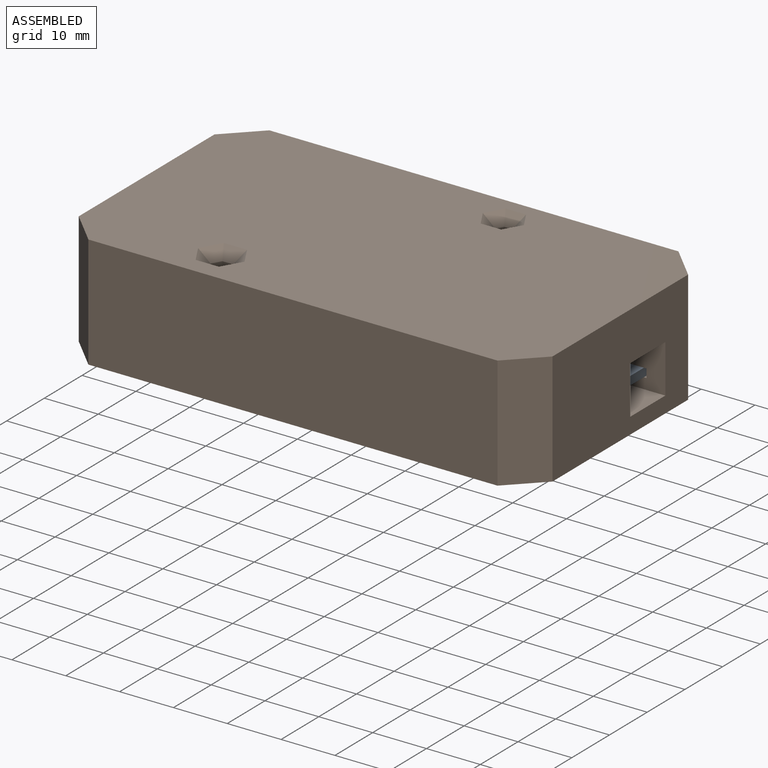
[diagram: assembled view]
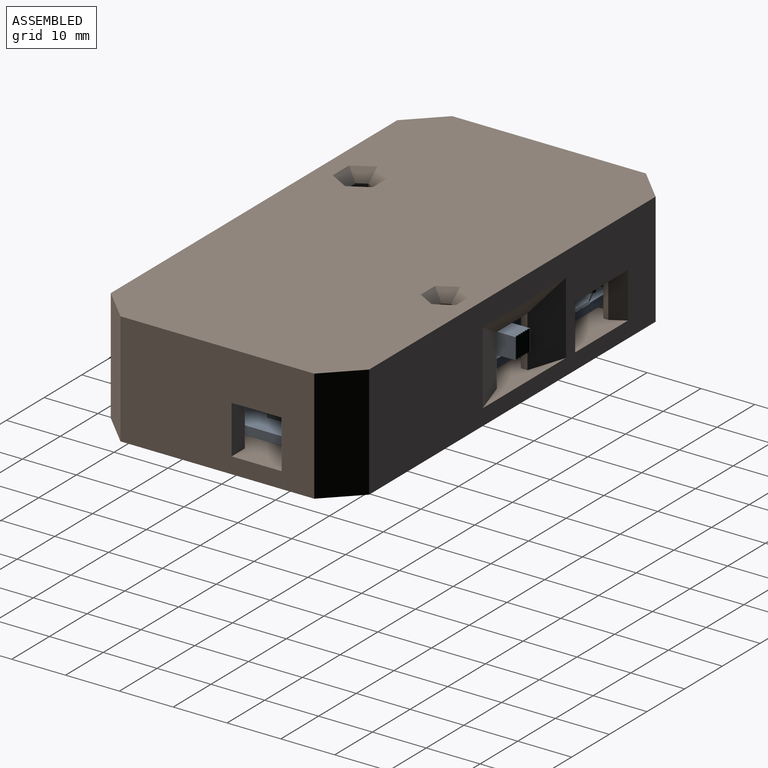
[diagram: assembled view, second angle]
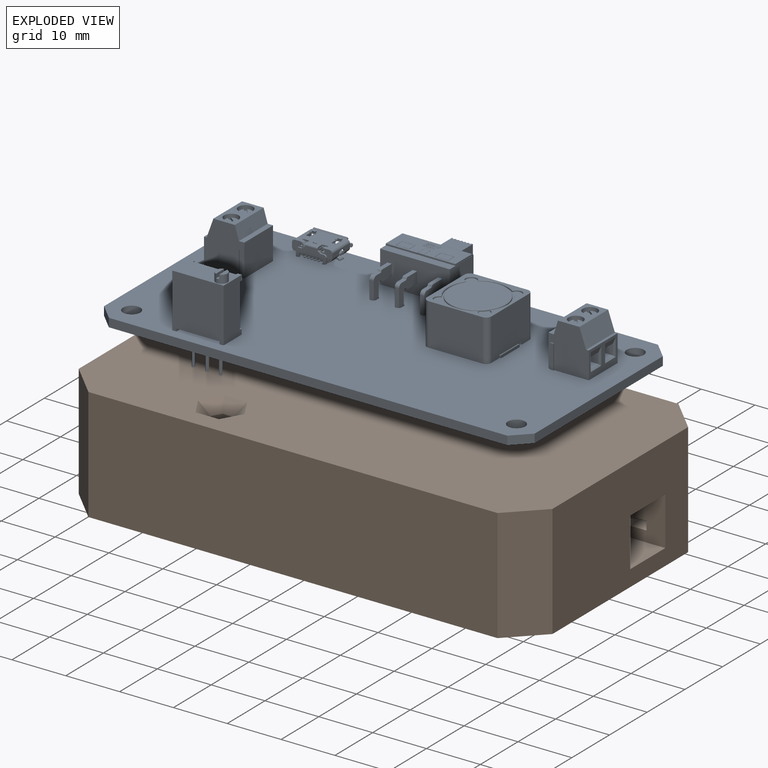
[diagram: exploded view]
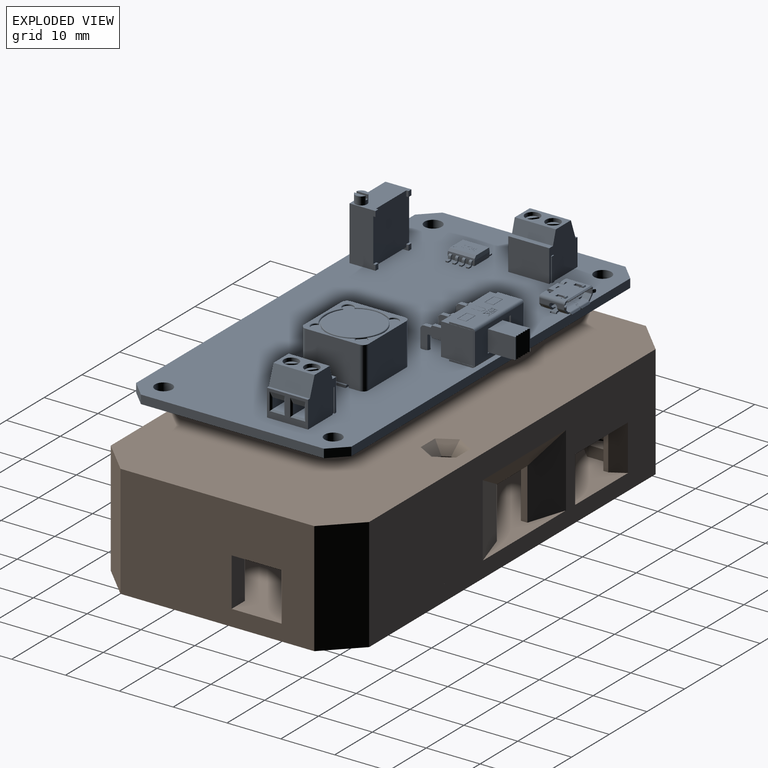
[diagram: exploded view, second angle]
FCSTD DOCUMENT  (FreeCAD 0.19R24291 (Git))
Label: Draft_Enclosure
License: All rights reserved
LicenseURL: http://en.wikipedia.org/wiki/All_rights_reserved
objects: Part::Feature×30, Sketcher::SketchObject×21, PartDesign::Mirrored×19, PartDesign::Pocket×13, PartDesign::MultiTransform×9, PartDesign::Pad×7, App::Part×6, PartDesign::Chamfer×6, PartDesign::Body×2, PartDesign::CoordinateSystem×1, App::Link×1, Part::Compound×1, App::MeasureDistance×1
note: 135 computed .brp shape members not serialized (recipe doc carries the construction recipe); baked Part::Feature solids carry a one-line shape summary decoded from their .brp

FEATURE [PartDesign::CoordinateSystem] Local_CS_88a2
  AttacherType = Attacher::AttachEngine3D
FEATURE [Part::Feature] Pcb_88a2
  Placement = pos=(-40,20,0) rot=(0,0,1;0rad)
  shape: bbox 80 x 40 x 1.6 mm, 53 faces (baked)
FEATURE [Sketcher::SketchObject] PCB_Sketch_88a2
  FullyConstrained = false
  sketch-geometry (8):
    g0: LineSegment StartX=-37 StartY=-20 StartZ=0 EndX=-40 EndY=-17 EndZ=0
    g1: LineSegment StartX=40 StartY=-17 StartZ=0 EndX=37 EndY=-20 EndZ=0
    g2: LineSegment StartX=37 StartY=20 StartZ=0 EndX=40 EndY=17 EndZ=0
    g3: LineSegment StartX=-40 StartY=17 StartZ=0 EndX=-37 EndY=20 EndZ=0
    g4: LineSegment StartX=40 StartY=-17 StartZ=0 EndX=40 EndY=17 EndZ=0
    g5: LineSegment StartX=-37 StartY=-20 StartZ=0 EndX=37 EndY=-20 EndZ=0
    g6: LineSegment StartX=37 StartY=20 StartZ=0 EndX=-37 EndY=20 EndZ=0
    g7: LineSegment StartX=-40 StartY=17 StartZ=0 EndX=-40 EndY=-17 EndZ=0
FEATURE [App::Part] Board_Geoms_88a2
  Group = -> [Local_CS_88a2,Pcb_88a2,PCB_Sketch_88a2]
  Origin = -> Origin
FEATURE [Part::Feature] Shape  label="U2_User Library-SOIC8_JEDEC_MS-012AA_60C0EC17"
  Placement = pos=(-28.75,-4.25,0) rot=(0.57735,0.57735,0.57735;2.0944rad)
  shape: bbox 6.199 x 5 x 1.753 mm, 162 faces (baked)
FEATURE [Part::Feature] Part__Feature  label="SOLID"
  shape: bbox 12.95 x 4.8 x 6.6 mm, 476 faces (baked)
FEATURE [Part::Feature] Part__Feature001  label="SOLID001"
  shape: bbox 12.95 x 16.1 x 8.83 mm, 78 faces (baked)
FEATURE [Part::Feature] Part__Feature002  label="SOLID002"
  shape: bbox 2.418 x 1.567 x 0.3 mm, 6 faces (baked)
FEATURE [Part::Feature] Part__Feature003  label="SOLID003"
  shape: bbox 2.418 x 1.567 x 0.3 mm, 6 faces (baked)
FEATURE [Part::Feature] Part__Feature004  label="SOLID004"
  shape: bbox 1.14 x 2.04 x 0.3 mm, 6 faces (baked)
FEATURE [Part::Feature] Part__Feature005  label="SOLID005"
  shape: bbox 2.418 x 1.567 x 0.3 mm, 6 faces (baked)
FEATURE [Part::Feature] Part__Feature006  label="SOLID006"
  shape: bbox 2.418 x 1.567 x 0.3 mm, 6 faces (baked)
FEATURE [Part::Feature] Part__Feature007  label="SOLID007"
  shape: bbox 1.14 x 2.04 x 0.3 mm, 6 faces (baked)
FEATURE [App::Part] ss_12d06l5_1  label="SW1_ss-12d06l5_1_60C0EBDE"
  Group = -> [Part__Feature,Part__Feature001,Part__Feature002,Part__Feature003,Part__Feature004,Part__Feature005,Part__Feature006,Part__Feature007]
  Origin = -> Origin008
  Placement = pos=(-3.25,19.3,3.3) rot=(0,1,0;3.14159rad)
FEATURE [Part::Feature] Shape001  label="RV1_User Library-bourns 3296 pot_60C0EB31"
  Placement = pos=(-21.75,-13.75,0) rot=(1,0,0;1.5708rad)
  shape: bbox 9.53 x 4.831 x 17.95 mm, 194 faces (baked)
FEATURE [Part::Feature] Shape002  label="L1_User Library-DE1207_60D26DF9"
  Placement = pos=(14.25,4.75,0) rot=(0,0,-1;1.5708rad)
  shape: bbox 21 x 12.07 x 8 mm, 93 faces (baked)
FEATURE [Part::Feature] Shape003  label="J7_User Library-ARK2_3v81_60C0E812"
  Placement = pos=(32,7.25,0) rot=(0,0,-1;1.5708rad)
  shape: bbox 7.501 x 7.811 x 12 mm, 76 faces (baked)
FEATURE [App::Link] J7_User_Library_ARK2_3v81_60C0E812_ln_  label="J6_User Library-ARK2_3v81_60C0E74A"
  LinkPlacement = pos=(-32,7.25,0) rot=(0,0,1;1.5708rad)
  LinkedObject = -> Shape003
  Placement = pos=(-32,7.25,0) rot=(0,0,1;1.5708rad)
FEATURE [Part::Feature] Shape004  label="J5_User Library-MicroUSB-B_Molex_105017-0001_60C0E682"
  Placement = pos=(-23.75,17.35,1.2) rot=(0,0.707107,0.707107;3.14159rad)
  shape: bbox 8.2 x 5.43 x 3.3 mm, 436 faces (baked)
FEATURE [App::Part] Top_88a2
  Group = -> [Shape,ss_12d06l5_1,Shape001,Shape002,Shape003,J7_User_Library_ARK2_3v81_60C0E812_ln_,Shape004]
  Origin = -> Origin003
FEATURE [App::Part] Step_Models_88a2
  Group = -> [Top_88a2]
  Origin = -> Origin002
FEATURE [App::Part] Board_88a2  label="BatteryBoost"
  Group = -> [Board_Geoms_88a2,Step_Models_88a2]
  Origin = -> Origin001
FEATURE [Part::Feature] Pcb_88a2_cp
  Placement = pos=(-40,20,0) rot=(0,0,1;0rad)
  shape: bbox 80 x 40 x 1.6 mm, 53 faces (baked)
FEATURE [Part::Feature] Shape_cp  label="U2_User Library-SOIC8_JEDEC_MS-012AA_60C0EC17_cp"
  Placement = pos=(-28.75,-4.25,0) rot=(0.57735,0.57735,0.57735;2.0944rad)
  shape: bbox 6.199 x 5 x 1.753 mm, 162 faces (baked)
FEATURE [Part::Feature] Part__Feature_cp  label="SOLID_cp"
  Placement = pos=(-3.25,19.3,3.3) rot=(0,1,0;3.14159rad)
  shape: bbox 12.95 x 4.8 x 6.6 mm, 476 faces (baked)
FEATURE [Part::Feature] Part__Feature001_cp  label="SOLID001_cp"
  Placement = pos=(-3.25,19.3,3.3) rot=(0,1,0;3.14159rad)
  shape: bbox 12.95 x 16.1 x 8.83 mm, 78 faces (baked)
FEATURE [Part::Feature] Part__Feature002_cp  label="SOLID002_cp"
  Placement = pos=(-3.25,19.3,3.3) rot=(0,1,0;3.14159rad)
  shape: bbox 2.418 x 1.567 x 0.3 mm, 6 faces (baked)
FEATURE [Part::Feature] Part__Feature003_cp  label="SOLID003_cp"
  Placement = pos=(-3.25,19.3,3.3) rot=(0,1,0;3.14159rad)
  shape: bbox 2.418 x 1.567 x 0.3 mm, 6 faces (baked)
FEATURE [Part::Feature] Part__Feature004_cp  label="SOLID004_cp"
  Placement = pos=(-3.25,19.3,3.3) rot=(0,1,0;3.14159rad)
  shape: bbox 1.14 x 2.04 x 0.3 mm, 6 faces (baked)
FEATURE [Part::Feature] Part__Feature005_cp  label="SOLID005_cp"
  Placement = pos=(-3.25,19.3,3.3) rot=(0,1,0;3.14159rad)
  shape: bbox 2.418 x 1.567 x 0.3 mm, 6 faces (baked)
FEATURE [Part::Feature] Part__Feature006_cp  label="SOLID006_cp"
  Placement = pos=(-3.25,19.3,3.3) rot=(0,1,0;3.14159rad)
  shape: bbox 2.418 x 1.567 x 0.3 mm, 6 faces (baked)
FEATURE [Part::Feature] Part__Feature007_cp  label="SOLID007_cp"
  Placement = pos=(-3.25,19.3,3.3) rot=(0,1,0;3.14159rad)
  shape: bbox 1.14 x 2.04 x 0.3 mm, 6 faces (baked)
FEATURE [Part::Feature] Shape001_cp  label="RV1_User Library-bourns 3296 pot_60C0EB31_cp"
  Placement = pos=(-21.75,-13.75,0) rot=(1,0,0;1.5708rad)
  shape: bbox 9.53 x 4.831 x 17.95 mm, 194 faces (baked)
FEATURE [Part::Feature] Shape002_cp  label="L1_User Library-DE1207_60D26DF9_cp"
  Placement = pos=(14.25,4.75,0) rot=(0,0,-1;1.5708rad)
  shape: bbox 21 x 12.07 x 8 mm, 93 faces (baked)
FEATURE [Part::Feature] Shape003_cp  label="J7_User Library-ARK2_3v81_60C0E812_cp"
  Placement = pos=(32,7.25,0) rot=(0,0,-1;1.5708rad)
  shape: bbox 7.501 x 7.811 x 12 mm, 76 faces (baked)
FEATURE [Part::Feature] J7_User_Library_ARK2_3v81_60C0E812_ln__cp  label="J6_User Library-ARK2_3v81_60C0E74A_cp"
  Placement = pos=(-32,7.25,0) rot=(0,0,1;1.5708rad)
  shape: bbox 7.501 x 7.811 x 12 mm, 76 faces (baked)
FEATURE [Part::Feature] Shape004_cp  label="J5_User Library-MicroUSB-B_Molex_105017-0001_60C0E682_cp"
  Placement = pos=(-23.75,17.35,1.2) rot=(0,0.707107,0.707107;3.14159rad)
  shape: bbox 8.2 x 5.43 x 3.3 mm, 436 faces (baked)
FEATURE [Part::Compound] BatteryBoost_cp
  Links = -> [Pcb_88a2_cp,Shape_cp,Part__Feature_cp,Part__Feature001_cp,Part__Feature002_cp,Part__Feature003_cp,Part__Feature004_cp,Part__Feature005_cp,Part__Feature006_cp,Part__Feature007_cp,Shape001_cp,Shape002_cp,Shape003_cp,J7_User_Library_ARK2_3v81_60C0E812_ln__cp,Shape004_cp]
FEATURE [Part::Feature] BatteryBoost_cp_cp  label="BatteryBoost_sp"
  Placement = pos=(0,0,1e-16) rot=(0,0,1;0rad)
  shape: bbox 80 x 44.3 x 17.95 mm, 1680 faces, 15 solids (baked)
FEATURE [Sketcher::SketchObject] Sketch
  FullyConstrained = true
  MapMode = 5
  Support = -> [XY_Plane010]
  sketch-geometry (4):
    g0: LineSegment StartX=-44 StartY=-24 StartZ=0 EndX=44 EndY=-24 EndZ=0
    g1: LineSegment StartX=44 StartY=-24 StartZ=0 EndX=44 EndY=24 EndZ=0
    g2: LineSegment StartX=44 StartY=24 StartZ=0 EndX=-44 EndY=24 EndZ=0
    g3: LineSegment StartX=-44 StartY=24 StartZ=0 EndX=-44 EndY=-24 EndZ=0
  constraints (10):
    c: Coincident(g0,g1)
    c: Coincident(g1,g2)
    c: Coincident(g2,g3)
    c: Coincident(g3,g0)
    c: Horizontal(g0)
    c: Vertical(g3)
    c: Symmetric(g2,g1,g-2)
    c: Symmetric(g1,g0,g-1)
    c: DistanceX(g0,g0) = 88
    c: DistanceY(g1,g1) = 48
FEATURE [PartDesign::Pad] Pad
  Direction = (1,1,1)
  Length = 3
  Length2 = 100
  Profile = -> Sketch
  Type = 0
FEATURE [Sketcher::SketchObject] Sketch001
  ExternalGeometry = -> [Pad]
  FullyConstrained = true
  MapMode = 5
  Placement = pos=(0,0,3) rot=(0,0,1;0rad)
  Support = -> [Pad]
  sketch-geometry (8):
    g0: LineSegment StartX=-44 StartY=24 StartZ=0 EndX=44 EndY=24 EndZ=0
    g1: LineSegment StartX=44 StartY=24 StartZ=0 EndX=44 EndY=-24 EndZ=0
    g2: LineSegment StartX=44 StartY=-24 StartZ=0 EndX=-44 EndY=-24 EndZ=0
    g3: LineSegment StartX=-44 StartY=-24 StartZ=0 EndX=-44 EndY=24 EndZ=0
    g4: LineSegment StartX=-40.5 StartY=20.5 StartZ=0 EndX=40.5 EndY=20.5 EndZ=0
    g5: LineSegment StartX=40.5 StartY=20.5 StartZ=0 EndX=40.5 EndY=-20.5 EndZ=0
    g6: LineSegment StartX=40.5 StartY=-20.5 StartZ=0 EndX=-40.5 EndY=-20.5 EndZ=0
    g7: LineSegment StartX=-40.5 StartY=-20.5 StartZ=0 EndX=-40.5 EndY=20.5 EndZ=0
  constraints (21):
    c: Coincident(g0,g1)
    c: Coincident(g1,g2)
    c: Coincident(g2,g3)
    c: Coincident(g3,g0)
    c: Horizontal(g0)
    c: Horizontal(g2)
    c: Vertical(g1)
    c: Vertical(g3)
    c: Equal(g-3,g0)
    c: Coincident(g-3,g0)
    c: Equal(g1,g-4)
    c: Coincident(g4,g5)
    c: Coincident(g5,g6)
    c: Coincident(g6,g7)
    c: Coincident(g7,g4)
    c: Horizontal(g6)
    c: Vertical(g5)
    c: Symmetric(g4,g6,g-1)
    c: Symmetric(g4,g4,g-2)
    c: DistanceX(g4,g4) = 81
    c: DistanceY(g7,g7) = 41
FEATURE [PartDesign::Pad] Pad001
  BaseFeature = -> Pad
  Direction = (1,1,1)
  Length = 15
  Length2 = 100
  Profile = -> Sketch001
  Type = 0
FEATURE [Sketcher::SketchObject] Sketch002
  ExternalGeometry = -> [Pad001]
  FullyConstrained = false
  MapMode = 5
  Placement = pos=(0,0,3) rot=(0,0,1;0rad)
  Support = -> [Pad001]
  sketch-geometry (10):
    g0: LineSegment StartX=-31.9645 StartY=15.5 StartZ=0 EndX=-31.9645 EndY=20.5 EndZ=0
    g1: LineSegment StartX=-40.5 StartY=11.9645 StartZ=0 EndX=-35.5 EndY=11.9645 EndZ=0
    g2: LineSegment StartX=-35.5 StartY=11.9645 StartZ=0 EndX=-31.9645 EndY=15.5 EndZ=0
    g3: Circle CenterX=-38 CenterY=18 CenterZ=0 NormalX=0 NormalY=0 NormalZ=1 AngleXU=0 Radius=6.53281
    g4: LineSegment StartX=-40.5 StartY=11.9645 StartZ=0 EndX=-40.5 EndY=20.5 EndZ=0
    g5: LineSegment StartX=-40.5 StartY=20.5 StartZ=0 EndX=-31.9645 EndY=20.5 EndZ=0
    g6: Circle CenterX=-35.75 CenterY=15.75 CenterZ=0 NormalX=0 NormalY=0 NormalZ=1 AngleXU=0 Radius=2
    g7: LineSegment StartX=-39.9824 StartY=20.0201 StartZ=0 EndX=-37.0687 EndY=17.2575 EndZ=0
    g8: LineSegment StartX=-35.904 StartY=12.738 StartZ=0 EndX=-36.7469 EndY=15.9243 EndZ=0
    g9: LineSegment StartX=-32.6433 StartY=15.7056 StartZ=0 EndX=-36.0445 EndY=16.1423 EndZ=0
  constraints (20):
    c: Coincident(g1,g2)
    c: Coincident(g2,g0)
    c: Equal(g0,g1)
    c: Equal(g0,g2)
    c: PointOnObject(g0,g3)
    c: PointOnObject(g1,g3)
    c: PointOnObject(g1,g3)
    c: PointOnObject(g2,g3)
    c: PointOnObject(g0,g-3)
    c: PointOnObject(g1,g-4)
    c: Vertical(g0)
    c: Horizontal(g1)
    c: DistanceY(g0,g0) = 5
    c: Coincident(g4,g5)
    c: Coincident(g5,g0)
    c: Coincident(g4,g1)
    c: Coincident(g-4,g4)
    c: Diameter(g6) = 4
    c: DistanceX(g6,g-1) = 35.75
    c: DistanceY(g-1,g6) = 15.75
FEATURE [PartDesign::Pad] Pad002
  BaseFeature = -> Pad001
  Direction = (1,1,1)
  Length = 11.4
  Length2 = 100
  Profile = -> Sketch002
  Type = 0
FEATURE [PartDesign::Mirrored] Mirrored
  MirrorPlane = -> Sketch002 [V_Axis]
FEATURE [PartDesign::Mirrored] Mirrored001
  MirrorPlane = -> Sketch002 [H_Axis]
FEATURE [PartDesign::MultiTransform] MultiTransform
  BaseFeature = -> Pad002
  Originals = -> [Pad002]
  Transformations = -> [Mirrored,Mirrored001]
FEATURE [Sketcher::SketchObject] Sketch003
  ExternalGeometry = -> [MultiTransform]
  FullyConstrained = false
  MapMode = 5
  Placement = pos=(-44,0,0) rot=(0.57735,-0.57735,-0.57735;2.0944rad)
  Support = -> [MultiTransform]
  sketch-geometry (4):
    g0: LineSegment StartX=2.65431 StartY=18 StartZ=0 EndX=11.9479 EndY=18 EndZ=0
    g1: LineSegment StartX=11.9479 StartY=18 StartZ=0 EndX=11.9479 EndY=9.0159 EndZ=0
    g2: LineSegment StartX=11.9479 StartY=9.0159 StartZ=0 EndX=2.65431 EndY=9.0159 EndZ=0
    g3: LineSegment StartX=2.65431 StartY=9.0159 StartZ=0 EndX=2.65431 EndY=18 EndZ=0
  constraints (9):
    c: Coincident(g0,g1)
    c: Coincident(g1,g2)
    c: Coincident(g2,g3)
    c: Coincident(g3,g0)
    c: Horizontal(g0)
    c: Horizontal(g2)
    c: Vertical(g1)
    c: Vertical(g3)
    c: PointOnObject(g0,g-3)
FEATURE [PartDesign::Pocket] Pocket
  BaseFeature = -> MultiTransform
  Length = 5
  Length2 = 100
  Profile = -> Sketch003
  Type = 0
FEATURE [PartDesign::Mirrored] Mirrored002
  BaseFeature = -> Pocket
  MirrorPlane = -> YZ_Plane010
  Originals = -> [Pocket]
FEATURE [Sketcher::SketchObject] Sketch004
  ExternalGeometry = -> [Mirrored002]
  FullyConstrained = false
  MapMode = 5
  Placement = pos=(0,-24,0) rot=(1,0,0;1.5708rad)
  Support = -> [Mirrored002]
  sketch-geometry (4):
    g0: LineSegment StartX=-7.23893 StartY=18 StartZ=0 EndX=0.861068 EndY=18 EndZ=0
    g1: LineSegment StartX=0.861068 StartY=18 StartZ=0 EndX=0.861068 EndY=8.5 EndZ=0
    g2: LineSegment StartX=0.861068 StartY=8.5 StartZ=0 EndX=-7.23893 EndY=8.5 EndZ=0
    g3: LineSegment StartX=-7.23893 StartY=8.5 StartZ=0 EndX=-7.23893 EndY=18 EndZ=0
  constraints (11):
    c: Coincident(g0,g1)
    c: Coincident(g1,g2)
    c: Coincident(g2,g3)
    c: Coincident(g3,g0)
    c: Horizontal(g0)
    c: Horizontal(g2)
    c: Vertical(g1)
    c: Vertical(g3)
    c: PointOnObject(g0,g-3)
    c: DistanceX(g0,g0) = 8.1
    c: DistanceY(g1,g1) = 9.5
FEATURE [PartDesign::Pocket] Pocket001
  BaseFeature = -> Mirrored002
  Length = 5
  Length2 = 100
  Profile = -> Sketch004
  Type = 0
FEATURE [PartDesign::Chamfer] Chamfer
  Angle = 18
  Base = -> Pocket001 [Edge16,Edge14]
  BaseFeature = -> Pocket001
  ChamferType = 2
  FlipDirection = false
  Size = 7
  Size2 = 1
  SupportTransform = false
FEATURE [PartDesign::Chamfer] Chamfer001
  Angle = 30
  Base = -> Chamfer [Edge6,Edge4,Edge8]
  BaseFeature = -> Chamfer
  ChamferType = 2
  FlipDirection = false
  Size = 4
  Size2 = 1
  SupportTransform = false
FEATURE [Sketcher::SketchObject] Sketch005
  ExternalGeometry = -> [Chamfer001]
  FullyConstrained = false
  MapMode = 5
  Placement = pos=(0,-24,0) rot=(1,0,0;1.5708rad)
  Support = -> [Chamfer001]
  sketch-geometry (4):
    g0: LineSegment StartX=-29.1463 StartY=18 StartZ=0 EndX=-18.1463 EndY=18 EndZ=0
    g1: LineSegment StartX=-18.1463 StartY=18 StartZ=0 EndX=-18.1463 EndY=11 EndZ=0
    g2: LineSegment StartX=-18.1463 StartY=11 StartZ=0 EndX=-29.1463 EndY=11 EndZ=0
    g3: LineSegment StartX=-29.1463 StartY=11 StartZ=0 EndX=-29.1463 EndY=18 EndZ=0
  constraints (11):
    c: Coincident(g0,g1)
    c: Coincident(g1,g2)
    c: Coincident(g2,g3)
    c: Coincident(g3,g0)
    c: Horizontal(g0)
    c: Horizontal(g2)
    c: Vertical(g1)
    c: Vertical(g3)
    c: PointOnObject(g0,g-3)
    c: DistanceX(g2,g2) = 11
    c: DistanceY(g1,g1) = 7
FEATURE [PartDesign::Pocket] Pocket002
  BaseFeature = -> Chamfer001
  Length = 5
  Length2 = 100
  Profile = -> Sketch005
  Type = 0
FEATURE [PartDesign::Chamfer] Chamfer002
  Angle = 60
  Base = -> Pocket002 [Edge11,Edge12,Edge10]
  BaseFeature = -> Pocket002
  ChamferType = 2
  FlipDirection = false
  Size = 1.5
  Size2 = 1
  SupportTransform = false
FEATURE [Sketcher::SketchObject] Sketch006
  ExternalGeometry = -> [Chamfer002]
  FullyConstrained = true
  MapMode = 5
  Placement = pos=(0,0,14.4) rot=(0,0,1;0rad)
  Support = -> [Chamfer002]
  sketch-geometry (3):
    g0: LineSegment StartX=-40.5 StartY=20.5 StartZ=0 EndX=-40.5 EndY=17 EndZ=0
    g1: LineSegment StartX=-40.5 StartY=17 StartZ=0 EndX=-37 EndY=20.5 EndZ=0
    g2: LineSegment StartX=-37 StartY=20.5 StartZ=0 EndX=-40.5 EndY=20.5 EndZ=0
  constraints (8):
    c: Vertical(g0)
    c: Coincident(g0,g1)
    c: Coincident(g1,g2)
    c: Coincident(g0,g2)
    c: Coincident(g0,g-4)
    c: PointOnObject(g1,g-3)
    c: Angle(g2,g1) = 0.785398
    c: DistanceX(g2,g2) = 3.5
FEATURE [PartDesign::Pad] Pad003
  BaseFeature = -> Chamfer002
  Direction = (1,1,1)
  Length = 1.6
  Length2 = 100
  Profile = -> Sketch006
  Type = 0
FEATURE [PartDesign::Mirrored] Mirrored003
  MirrorPlane = -> Sketch006 [V_Axis]
FEATURE [PartDesign::Mirrored] Mirrored004
  MirrorPlane = -> Sketch006 [H_Axis]
FEATURE [PartDesign::MultiTransform] MultiTransform001
  BaseFeature = -> Pad003
  Originals = -> [Pad003]
  Transformations = -> [Mirrored003,Mirrored004]
FEATURE [Sketcher::SketchObject] Sketch007
  FullyConstrained = false
  MapMode = 5
  Placement = pos=(0,0,0) rot=(1,0,0;3.14159rad)
  Support = -> [MultiTransform001]
  sketch-geometry (8):
    g0: LineSegment StartX=-16.2674 StartY=-16.9218 StartZ=0 EndX=-17.2674 EndY=-15.1897 EndZ=0
    g1: LineSegment StartX=-17.2674 StartY=-15.1897 StartZ=0 EndX=-19.2674 EndY=-15.1897 EndZ=0
    g2: LineSegment StartX=-19.2674 StartY=-15.1897 StartZ=0 EndX=-20.2674 EndY=-16.9218 EndZ=0
    g3: LineSegment StartX=-20.2674 StartY=-16.9218 StartZ=0 EndX=-19.2674 EndY=-18.6538 EndZ=0
    g4: LineSegment StartX=-19.2674 StartY=-18.6538 StartZ=0 EndX=-17.2674 EndY=-18.6538 EndZ=0
    g5: LineSegment StartX=-17.2674 StartY=-18.6538 StartZ=0 EndX=-16.2674 EndY=-16.9218 EndZ=0
    g6: Circle CenterX=-18.2674 CenterY=-16.9218 CenterZ=0 NormalX=0 NormalY=0 NormalZ=1 AngleXU=0 Radius=2
    g7: LineSegment StartX=-20.2674 StartY=-16.9218 StartZ=0 EndX=-16.2674 EndY=-16.9218 EndZ=0
  constraints (17):
    c: Coincident(g0,g1)
    c: Coincident(g1,g2)
    c: Coincident(g2,g3)
    c: Coincident(g3,g4)
    c: Coincident(g4,g5)
    c: Coincident(g5,g0)
    c: Equal(g0, g1-g5) x5
    c: PointOnObject(g0,g6)
    c: PointOnObject(g1,g6)
    c: PointOnObject(g2,g6)
    c: PointOnObject(g3,g6)
    c: PointOnObject(g4,g6)
    c: PointOnObject(g5,g6)
    c: Coincident(g7,g2)
    c: Coincident(g7,g0)
    c: Horizontal(g7)
    c: DistanceX(g1,g1) = 2
FEATURE [PartDesign::Pocket] Pocket003
  BaseFeature = -> MultiTransform001
  Length = 5
  Length2 = 100
  Profile = -> Sketch007
  Type = 0
FEATURE [PartDesign::Chamfer] Chamfer003
  Angle = 45
  Base = -> Pocket003 [Edge111,Edge112,Edge107,Edge108,Edge109,Edge110]
  BaseFeature = -> Pocket003
  ChamferType = 0
  FlipDirection = false
  Size = 2
  Size2 = 1
  SupportTransform = false
FEATURE [Sketcher::SketchObject] Sketch008
  FullyConstrained = true
  MapMode = 5
  Placement = pos=(0,0,0) rot=(1,0,0;3.14159rad)
  Support = -> [Chamfer003]
  sketch-geometry (8):
    g0: GeomPoint X=9.5 Y=18.25 Z=0
    g1: LineSegment StartX=11 StartY=18.25 StartZ=0 EndX=10.25 EndY=19.549 EndZ=0
    g2: LineSegment StartX=10.25 StartY=19.549 StartZ=0 EndX=8.75 EndY=19.549 EndZ=0
    g3: LineSegment StartX=8.75 StartY=19.549 StartZ=0 EndX=8 EndY=18.25 EndZ=0
    g4: LineSegment StartX=8 StartY=18.25 StartZ=0 EndX=8.75 EndY=16.951 EndZ=0
    g5: LineSegment StartX=8.75 StartY=16.951 StartZ=0 EndX=10.25 EndY=16.951 EndZ=0
    g6: LineSegment StartX=10.25 StartY=16.951 StartZ=0 EndX=11 EndY=18.25 EndZ=0
    g7: Circle CenterX=9.5 CenterY=18.25 CenterZ=0 NormalX=0 NormalY=0 NormalZ=1 AngleXU=0 Radius=1.5
  constraints (18):
    c: DistanceX(g-1,g0) = 9.5
    c: DistanceY(g-1,g0) = 18.25
    c: Coincident(g1,g2)
    c: Coincident(g2,g3)
    c: Coincident(g3,g4)
    c: Coincident(g4,g5)
    c: Coincident(g5,g6)
    c: Coincident(g6,g1)
    c: Equal(g1, g2-g6) x5
    c: PointOnObject(g1,g7)
    c: PointOnObject(g2,g7)
    c: PointOnObject(g3,g7)
    c: PointOnObject(g4,g7)
    c: PointOnObject(g5,g7)
    c: PointOnObject(g6,g7)
    c: Coincident(g7,g0)
    c: Horizontal(g1,g0)
    c: DistanceX(g2,g2) = 1.5
FEATURE [PartDesign::Pocket] Pocket004
  BaseFeature = -> Chamfer003
  Length = 5
  Length2 = 100
  Profile = -> Sketch008
  Type = 0
FEATURE [PartDesign::Chamfer] Chamfer004
  Angle = 45
  Base = -> Pocket004 [Edge9,Edge8,Edge7,Edge6,Edge5,Edge10]
  BaseFeature = -> Pocket004
  ChamferType = 0
  FlipDirection = false
  Size = 2
  Size2 = 1
  SupportTransform = false
FEATURE [Sketcher::SketchObject] Sketch009
  ExternalGeometry = -> [Chamfer004]
  FullyConstrained = true
  MapMode = 5
  Placement = pos=(-44,0,0) rot=(0.57735,-0.57735,-0.57735;2.0944rad)
  Support = -> [Chamfer004]
  sketch-geometry (4):
    g0: LineSegment StartX=2.65431 StartY=18 StartZ=0 EndX=-9.34569 EndY=18 EndZ=0
    g1: LineSegment StartX=-9.34569 StartY=18 StartZ=0 EndX=-9.34569 EndY=12 EndZ=0
    g2: LineSegment StartX=-9.34569 StartY=12 StartZ=0 EndX=2.65431 EndY=12 EndZ=0
    g3: LineSegment StartX=2.65431 StartY=12 StartZ=0 EndX=2.65431 EndY=18 EndZ=0
  constraints (11):
    c: Coincident(g0,g1)
    c: Coincident(g1,g2)
    c: Coincident(g2,g3)
    c: Coincident(g3,g0)
    c: Horizontal(g0)
    c: Horizontal(g2)
    c: Vertical(g1)
    c: Vertical(g3)
    c: Coincident(g0,g-4)
    c: DistanceX(g2,g2) = 12
    c: DistanceY(g1,g1) = 6
FEATURE [PartDesign::Pocket] Pocket005
  BaseFeature = -> Chamfer004
  Length = 5
  Length2 = 100
  Profile = -> Sketch009
  Type = 0
FEATURE [PartDesign::Chamfer] Chamfer005
  Angle = 60
  Base = -> Pocket005 [Edge77]
  BaseFeature = -> Pocket005
  ChamferType = 2
  FlipDirection = false
  Size = 2
  Size2 = 1
  SupportTransform = false
FEATURE [Sketcher::SketchObject] Sketch010
  ExternalGeometry = -> [Chamfer005]
  FullyConstrained = true
  MapMode = 5
  Placement = pos=(0,0,0) rot=(1,0,0;3.14159rad)
  Support = -> [Chamfer005]
  sketch-geometry (3):
    g0: LineSegment StartX=38 StartY=24 StartZ=0 EndX=44 EndY=24 EndZ=0
    g1: LineSegment StartX=44 StartY=24 StartZ=0 EndX=44 EndY=18 EndZ=0
    g2: LineSegment StartX=44 StartY=18 StartZ=0 EndX=38 EndY=24 EndZ=0
  constraints (8):
    c: Horizontal(g0)
    c: Coincident(g0,g1)
    c: Coincident(g1,g2)
    c: Coincident(g2,g0)
    c: PointOnObject(g1,g-4)
    c: Coincident(g0,g-4)
    c: Equal(g0,g1)
    c: DistanceX(g0,g0) = 6
FEATURE [PartDesign::Pocket] Pocket006
  BaseFeature = -> Chamfer005
  Length = 5
  Length2 = 100
  Profile = -> Sketch010
  Type = 1
FEATURE [PartDesign::Mirrored] Mirrored005
  MirrorPlane = -> Sketch010 [V_Axis]
FEATURE [PartDesign::Mirrored] Mirrored006
  MirrorPlane = -> Sketch010 [H_Axis]
FEATURE [PartDesign::MultiTransform] MultiTransform002
  BaseFeature = -> Pocket006
  Originals = -> [Pocket006]
  Transformations = -> [Mirrored005,Mirrored006]
FEATURE [Sketcher::SketchObject] Sketch011
  ExternalGeometry = -> [MultiTransform002]
  FullyConstrained = true
  MapMode = 5
  Placement = pos=(0,0,16) rot=(0,0,1;0rad)
  Support = -> [MultiTransform002]
  sketch-geometry (3):
    g0: LineSegment StartX=-40.5 StartY=-20.5 StartZ=0 EndX=-40.5 EndY=-17 EndZ=0
    g1: LineSegment StartX=-40.5 StartY=-17 StartZ=0 EndX=-37 EndY=-20.5 EndZ=0
    g2: LineSegment StartX=-37 StartY=-20.5 StartZ=0 EndX=-40.5 EndY=-20.5 EndZ=0
  constraints (7):
    c: Coincident(g0,g1)
    c: Coincident(g1,g2)
    c: Coincident(g2,g0)
    c: Equal(g0,g2)
    c: Horizontal(g2)
    c: Coincident(g0,g-4)
    c: Coincident(g0,g-3)
FEATURE [PartDesign::Pad] Pad004
  BaseFeature = -> MultiTransform002
  Direction = (1,1,1)
  Length = 2
  Length2 = 100
  Profile = -> Sketch011
  Type = 0
FEATURE [PartDesign::Mirrored] Mirrored007
  MirrorPlane = -> Sketch011 [V_Axis]
FEATURE [PartDesign::Mirrored] Mirrored008
  MirrorPlane = -> Sketch011 [H_Axis]
FEATURE [PartDesign::MultiTransform] MultiTransform003
  BaseFeature = -> Pad004
  Originals = -> [Pad004]
  Transformations = -> [Mirrored007,Mirrored008]
FEATURE [PartDesign::Body] Body
  Group = -> [Sketch,Pad,Sketch001,Pad001,Sketch002,Pad002,MultiTransform,Mirrored,Mirrored001,Sketch003,Pocket,Mirrored002,Sketch004,Pocket001,Chamfer,Chamfer001,Sketch005,Pocket002,Chamfer002,Sketch006,Pad003,MultiTransform001,Mirrored003,Mirrored004,Sketch007,Pocket003,Chamfer003,Sketch008,Pocket004,Chamfer004,Sketch009,Pocket005,Chamfer005,Sketch010,Pocket006,MultiTransform002,Mirrored005,Mirrored006,+5 more]
  Origin = -> Origin010
  Placement = pos=(0,3e-15,19.4) rot=(1,0,0;3.14159rad)
  Tip = -> MultiTransform003
FEATURE [Sketcher::SketchObject] Sketch012
  FullyConstrained = true
  MapMode = 5
  Support = -> [XY_Plane011]
  sketch-geometry (4):
    g0: LineSegment StartX=-44 StartY=24 StartZ=0 EndX=44 EndY=24 EndZ=0
    g1: LineSegment StartX=44 StartY=24 StartZ=0 EndX=44 EndY=-24 EndZ=0
    g2: LineSegment StartX=44 StartY=-24 StartZ=0 EndX=-44 EndY=-24 EndZ=0
    g3: LineSegment StartX=-44 StartY=-24 StartZ=0 EndX=-44 EndY=24 EndZ=0
  constraints (10):
    c: Coincident(g0,g1)
    c: Coincident(g1,g2)
    c: Coincident(g2,g3)
    c: Coincident(g3,g0)
    c: Horizontal(g2)
    c: Vertical(g3)
    c: Symmetric(g0,g0,g-2)
    c: Symmetric(g0,g1,g-1)
    c: DistanceX(g0,g0) = 88
    c: DistanceY(g1,g1) = 48
FEATURE [PartDesign::Pad] Pad005
  Direction = (1,1,1)
  Length = 4
  Length2 = 100
  Profile = -> Sketch012
  Type = 0
FEATURE [Sketcher::SketchObject] Sketch013
  FullyConstrained = true
  MapMode = 5
  Placement = pos=(0,0,4) rot=(0,0,1;0rad)
  Support = -> [Pad005]
  sketch-geometry (4):
    g0: LineSegment StartX=-40.5 StartY=20.5 StartZ=0 EndX=40.5 EndY=20.5 EndZ=0
    g1: LineSegment StartX=40.5 StartY=20.5 StartZ=0 EndX=40.5 EndY=-20.5 EndZ=0
    g2: LineSegment StartX=40.5 StartY=-20.5 StartZ=0 EndX=-40.5 EndY=-20.5 EndZ=0
    g3: LineSegment StartX=-40.5 StartY=-20.5 StartZ=0 EndX=-40.5 EndY=20.5 EndZ=0
  constraints (10):
    c: Coincident(g0,g1)
    c: Coincident(g1,g2)
    c: Coincident(g2,g3)
    c: Coincident(g3,g0)
    c: Horizontal(g2)
    c: Vertical(g3)
    c: Symmetric(g1,g0,g-1)
    c: Symmetric(g0,g0,g-2)
    c: DistanceX(g0,g0) = 81
    c: DistanceY(g1,g1) = 41
FEATURE [PartDesign::Pad] Pad006
  BaseFeature = -> Pad005
  Direction = (1,1,1)
  Length = 2
  Length2 = 100
  Profile = -> Sketch013
  Type = 0
FEATURE [Sketcher::SketchObject] Sketch014
  ExternalGeometry = -> [Pad006]
  FullyConstrained = true
  MapMode = 5
  Placement = pos=(0,0,6) rot=(0,0,1;0rad)
  Support = -> [Pad006]
  sketch-geometry (7):
    g0: LineSegment StartX=0 StartY=0 StartZ=0 EndX=-40.5 EndY=0 EndZ=0
    g1: LineSegment StartX=-40.5 StartY=0 StartZ=0 EndX=-40.5 EndY=11.9645 EndZ=0
    g2: LineSegment StartX=-31.9645 StartY=20.5 StartZ=0 EndX=0 EndY=20.5 EndZ=0
    g3: LineSegment StartX=0 StartY=20.5 StartZ=0 EndX=0 EndY=0 EndZ=0
    g4: LineSegment StartX=-40.5 StartY=11.9645 StartZ=0 EndX=-35.5 EndY=11.9645 EndZ=0
    g5: LineSegment StartX=-35.5 StartY=11.9645 StartZ=0 EndX=-31.9645 EndY=15.5 EndZ=0
    g6: LineSegment StartX=-31.9645 StartY=15.5 StartZ=0 EndX=-31.9645 EndY=20.5 EndZ=0
  constraints (20):
    c: Coincident(g-1,g0)
    c: PointOnObject(g0,g-4)
    c: Horizontal(g0)
    c: Coincident(g0,g1)
    c: PointOnObject(g1,g-4)
    c: PointOnObject(g2,g-3)
    c: PointOnObject(g2,g-3)
    c: Coincident(g2,g3)
    c: Coincident(g3,g0)
    c: Vertical(g3)
    c: Coincident(g1,g4)
    c: Horizontal(g4)
    c: Coincident(g4,g5)
    c: Coincident(g5,g6)
    c: Vertical(g6)
    c: Coincident(g6,g2)
    c: Equal(g6,g4)
    c: Equal(g5,g6)
    c: Angle(g6,g5) = 2.35619
    c: DistanceY(g6,g6) = 5
FEATURE [PartDesign::Pocket] Pocket007
  BaseFeature = -> Pad006
  Length = 2
  Length2 = 100
  Profile = -> Sketch014
  Type = 0
FEATURE [PartDesign::Mirrored] Mirrored009
  MirrorPlane = -> Sketch014 [V_Axis]
FEATURE [PartDesign::Mirrored] Mirrored010
  MirrorPlane = -> Sketch014 [H_Axis]
FEATURE [PartDesign::MultiTransform] MultiTransform004
  BaseFeature = -> Pocket007
  Originals = -> [Pocket007]
  Transformations = -> [Mirrored009,Mirrored010]
FEATURE [Sketcher::SketchObject] Sketch015
  ExternalGeometry = -> [MultiTransform004]
  FullyConstrained = true
  MapMode = 5
  Placement = pos=(0,0,6) rot=(0,0,1;0rad)
  Support = -> [MultiTransform004]
  sketch-geometry (3):
    g0: LineSegment StartX=-40.5 StartY=17.5 StartZ=0 EndX=-40.5 EndY=20.5 EndZ=0
    g1: LineSegment StartX=-40.5 StartY=20.5 StartZ=0 EndX=-37.5 EndY=20.5 EndZ=0
    g2: LineSegment StartX=-37.5 StartY=20.5 StartZ=0 EndX=-40.5 EndY=17.5 EndZ=0
  constraints (8):
    c: PointOnObject(g0,g-4)
    c: Coincident(g0,g-4)
    c: Coincident(g0,g1)
    c: PointOnObject(g1,g-3)
    c: Coincident(g1,g2)
    c: Coincident(g2,g0)
    c: Equal(g1,g0)
    c: DistanceX(g1,g1) = 3
FEATURE [PartDesign::Pocket] Pocket008
  BaseFeature = -> MultiTransform004
  Length = 0
  Length2 = 100
  Profile = -> Sketch015
  Type = 3
  UpToFace = -> MultiTransform004 [Face5]
FEATURE [App::MeasureDistance] Distance  label="Distance: 5,00 mm"
  Distance = 5.00045
  P1 = (-31.9645,15.5,0)
  P2 = (-31.9873,20.5,-0.0630026)
FEATURE [Sketcher::SketchObject] Sketch016
  FullyConstrained = true
  MapMode = 5
  Placement = pos=(0,0,0) rot=(1,0,0;3.14159rad)
  Support = -> [Pocket008]
  sketch-geometry (1):
    g0: Circle CenterX=-35.75 CenterY=15.75 CenterZ=0 NormalX=0 NormalY=0 NormalZ=1 AngleXU=0 Radius=1.6
  constraints (3):
    c: DistanceX(g0,g-1) = 35.75
    c: DistanceY(g-1,g0) = 15.75
    c: Diameter(g0) = 3.2
FEATURE [PartDesign::Pocket] Pocket009
  BaseFeature = -> Pocket008
  Length = 5
  Length2 = 100
  Profile = -> Sketch016
  Type = 1
FEATURE [PartDesign::Mirrored] Mirrored011
  MirrorPlane = -> Sketch016 [V_Axis]
FEATURE [PartDesign::Mirrored] Mirrored012
  MirrorPlane = -> Sketch016 [H_Axis]
FEATURE [PartDesign::MultiTransform] MultiTransform005
  BaseFeature = -> Pocket009
  Originals = -> [Pocket009]
  Transformations = -> [Mirrored011,Mirrored012]
FEATURE [Sketcher::SketchObject] Sketch017
  FullyConstrained = true
  MapMode = 5
  Placement = pos=(0,0,0) rot=(1,0,0;3.14159rad)
  Support = -> [MultiTransform005]
  sketch-geometry (1):
    g0: Circle CenterX=-35.75 CenterY=15.75 CenterZ=0 NormalX=0 NormalY=0 NormalZ=1 AngleXU=0 Radius=4
  constraints (3):
    c: DistanceX(g0,g-1) = 35.75
    c: DistanceY(g-1,g0) = 15.75
    c: Diameter(g0) = 8
FEATURE [PartDesign::Pocket] Pocket010
  BaseFeature = -> MultiTransform005
  Length = 3
  Length2 = 100
  Profile = -> Sketch017
  Type = 0
FEATURE [PartDesign::Mirrored] Mirrored013
  MirrorPlane = -> Sketch017 [V_Axis]
FEATURE [PartDesign::Mirrored] Mirrored014
  MirrorPlane = -> Sketch017 [H_Axis]
FEATURE [PartDesign::MultiTransform] MultiTransform006
  BaseFeature = -> Pocket010
  Originals = -> [Pocket010]
  Transformations = -> [Mirrored013,Mirrored014]
FEATURE [Sketcher::SketchObject] Sketch018
  FullyConstrained = false
  MapMode = 5
  Placement = pos=(0,0,0) rot=(1,0,0;3.14159rad)
  Support = -> [MultiTransform006]
  sketch-geometry (4):
    g0: LineSegment StartX=-50.6389 StartY=-28.4485 StartZ=0 EndX=49.7036 EndY=-28.4485 EndZ=0
    g1: LineSegment StartX=49.7036 StartY=-28.4485 StartZ=0 EndX=49.7036 EndY=29.2485 EndZ=0
    g2: LineSegment StartX=49.7036 StartY=29.2485 StartZ=0 EndX=-50.6389 EndY=29.2485 EndZ=0
    g3: LineSegment StartX=-50.6389 StartY=29.2485 StartZ=0 EndX=-50.6389 EndY=-28.4485 EndZ=0
  constraints (8):
    c: Coincident(g0,g1)
    c: Coincident(g1,g2)
    c: Coincident(g2,g3)
    c: Coincident(g3,g0)
    c: Horizontal(g0)
    c: Horizontal(g2)
    c: Vertical(g1)
    c: Vertical(g3)
FEATURE [PartDesign::Pocket] Pocket011
  BaseFeature = -> MultiTransform006
  Length = 1
  Length2 = 100
  Profile = -> Sketch018
  Type = 0
FEATURE [Sketcher::SketchObject] Sketch019
  ExternalGeometry = -> [Pocket011]
  FullyConstrained = true
  MapMode = 5
  Placement = pos=(0,0,1) rot=(1,0,0;3.14159rad)
  Support = -> [Pocket011]
  sketch-geometry (3):
    g0: LineSegment StartX=-44 StartY=18 StartZ=0 EndX=-38 EndY=24 EndZ=0
    g1: LineSegment StartX=-38 StartY=24 StartZ=0 EndX=-44 EndY=24 EndZ=0
    g2: LineSegment StartX=-44 StartY=24 StartZ=0 EndX=-44 EndY=18 EndZ=0
  constraints (8):
    c: Coincident(g0,g1)
    c: Horizontal(g1)
    c: Coincident(g1,g2)
    c: Coincident(g2,g0)
    c: Vertical(g2)
    c: Equal(g1,g2)
    c: DistanceX(g1,g1) = 6
    c: Coincident(g1,g-3)
FEATURE [PartDesign::Pocket] Pocket012
  BaseFeature = -> Pocket011
  Length = 5
  Length2 = 100
  Profile = -> Sketch019
  Type = 1
FEATURE [PartDesign::Mirrored] Mirrored015
  MirrorPlane = -> Sketch019 [V_Axis]
FEATURE [PartDesign::Mirrored] Mirrored016
  MirrorPlane = -> Sketch019 [H_Axis]
FEATURE [PartDesign::MultiTransform] MultiTransform007
  BaseFeature = -> Pocket012
  Originals = -> [Pocket012]
  Transformations = -> [Mirrored015,Mirrored016]
FEATURE [PartDesign::Mirrored] Mirrored017
  MirrorPlane = -> Sketch015 [V_Axis]
FEATURE [PartDesign::Mirrored] Mirrored018
  MirrorPlane = -> Sketch015 [H_Axis]
FEATURE [PartDesign::MultiTransform] MultiTransform008
  BaseFeature = -> MultiTransform007
  Originals = -> [Pocket008]
  Transformations = -> [Mirrored017,Mirrored018]
FEATURE [PartDesign::Body] Body001
  Group = -> [Sketch012,Pad005,Sketch013,Pad006,Sketch014,Pocket007,MultiTransform004,Mirrored009,Mirrored010,Sketch015,Pocket008,Sketch016,Pocket009,MultiTransform005,Mirrored011,Mirrored012,Sketch017,Pocket010,MultiTransform006,Mirrored013,Mirrored014,Sketch018,Pocket011,Sketch019,Pocket012,MultiTransform007,Mirrored015,Mirrored016,MultiTransform008,Mirrored017,Mirrored018]
  Origin = -> Origin011
  Placement = pos=(0,0,-2.6) rot=(0,0,1;0rad)
  Tip = -> MultiTransform008
FEATURE [App::Part] Part  label="Enclosure"
  Group = -> [Body,Body001]
  Origin = -> Origin009
  Placement = pos=(0,0,-5) rot=(0,0,1;0rad)
